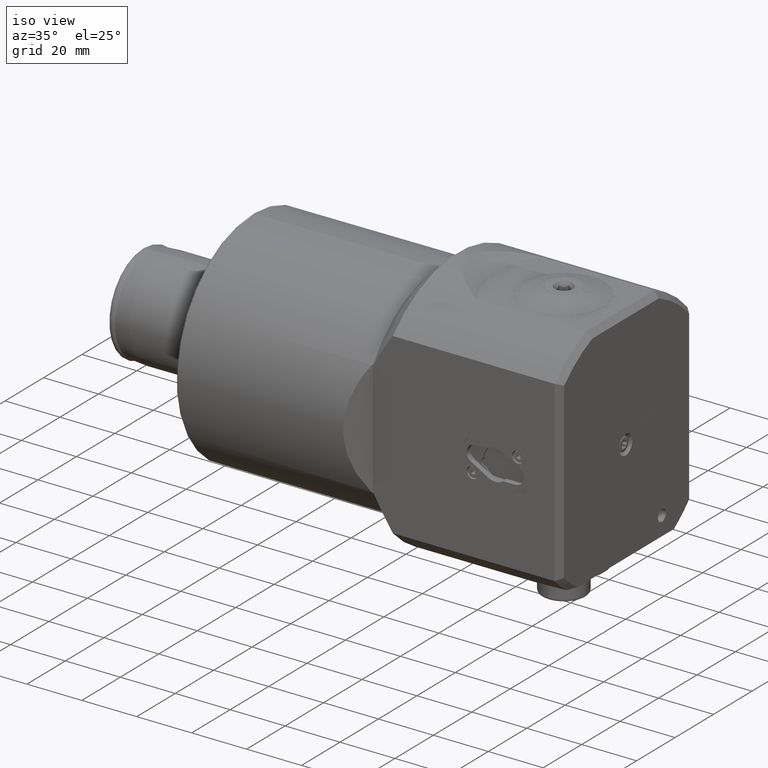
[diagram: clean part render]
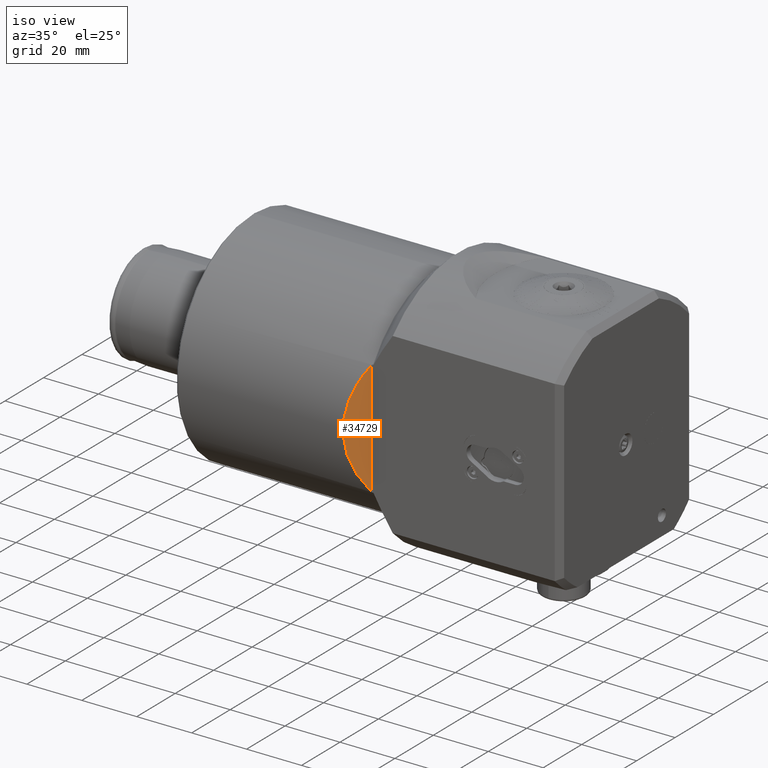
[diagram: same view with one face highlighted and labeled with its STEP entity id]
A machine part, iso view. The second image highlights one B-rep face of the part: STEP entity #34729.
In plain terms, the highlighted planar face has unit normal (-0.6842, 0.7293, 0).
Its self-contained STEP definition (entity closure, byte-faithful):
#2860 = DIRECTION ( 'NONE',  ( -0.7293033806323399000, -0.6841904552083727400, 0.0000000000000000000 ) ) ;
#5718 = FACE_OUTER_BOUND ( 'NONE', #17819, .T. ) ;
#7029 = EDGE_CURVE ( 'NONE', #22096, #16553, #9204, .T. ) ;
#8388 = CARTESIAN_POINT ( 'NONE',  ( -68.71303778911591600, -34.21655729549414800, -47.00000000000000700 ) ) ;
#9038 =( BOUNDED_CURVE ( )  B_SPLINE_CURVE ( 3, ( #31068, #14645, #14752, #20054 ),
 .UNSPECIFIED., .F., .F. ) 
 B_SPLINE_CURVE_WITH_KNOTS ( ( 4, 4 ),
 ( 5.738738475479662400, 6.827632138879510000 ),
 .UNSPECIFIED. ) 
 CURVE ( )  GEOMETRIC_REPRESENTATION_ITEM ( )  RATIONAL_B_SPLINE_CURVE ( ( 1.000000000000000000, 0.9036092882582350500, 0.9036092882582350500, 1.000000000000000000 ) ) 
 REPRESENTATION_ITEM ( '' )  );
#9204 = LINE ( 'NONE', #9283, #15573 ) ;
#9246 = ORIENTED_EDGE ( 'NONE', *, *, #24398, .F. ) ;
#9283 = CARTESIAN_POINT ( 'NONE',  ( -68.71303778911591600, -34.21655729549414800, -47.00000000000000700 ) ) ;
#11001 = DIRECTION ( 'NONE',  ( -0.6841904552083727400, 0.7293033806323399000, 0.0000000000000000000 ) ) ;
#14645 = CARTESIAN_POINT ( 'NONE',  ( -77.15195100762399200, -42.13345995872987300, -7.642609678504023800 ) ) ;
#14752 = CARTESIAN_POINT ( 'NONE',  ( -77.15195100762400700, -42.13345995872987300, 7.642609678504011400 ) ) ;
#15573 = VECTOR ( 'NONE', #25841, 1000.000000000000000 ) ;
#16553 = VERTEX_POINT ( 'NONE', #28561 ) ;
#17819 = EDGE_LOOP ( 'NONE', ( #18149, #9246 ) ) ;
#18149 = ORIENTED_EDGE ( 'NONE', *, *, #7029, .T. ) ;
#19513 = AXIS2_PLACEMENT_3D ( 'NONE', #8388, #11001, #2860 ) ;
#20054 = CARTESIAN_POINT ( 'NONE',  ( -68.71303778911591600, -34.21655729549414800, 20.71779927608551500 ) ) ;
#22096 = VERTEX_POINT ( 'NONE', #28706 ) ;
#24398 = EDGE_CURVE ( 'NONE', #22096, #16553, #9038, .T. ) ;
#25841 = DIRECTION ( 'NONE',  ( -0.0000000000000000000, -0.0000000000000000000, 1.000000000000000000 ) ) ;
#28561 = CARTESIAN_POINT ( 'NONE',  ( -68.71303778911591600, -34.21655729549414800, 20.71779927608551500 ) ) ;
#28706 = CARTESIAN_POINT ( 'NONE',  ( -68.71303778911591600, -34.21655729549414800, -20.71779927608551500 ) ) ;
#29821 = PLANE ( 'NONE',  #19513 ) ;
#31068 = CARTESIAN_POINT ( 'NONE',  ( -68.71303778911591600, -34.21655729549414800, -20.71779927608551500 ) ) ;
#34729 = ADVANCED_FACE ( 'NONE', ( #5718 ), #29821, .F. ) ;